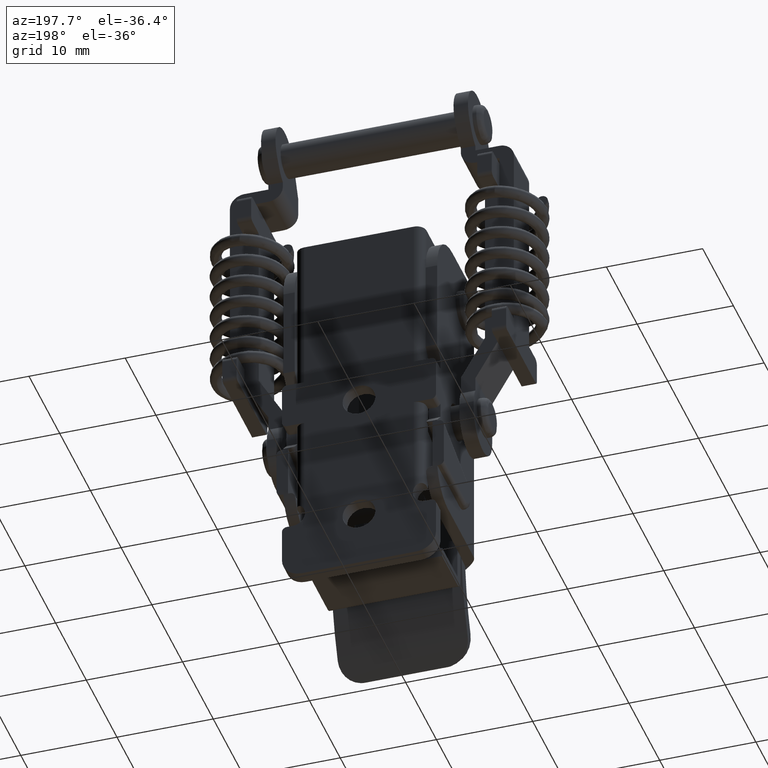
[diagram: clean part render]
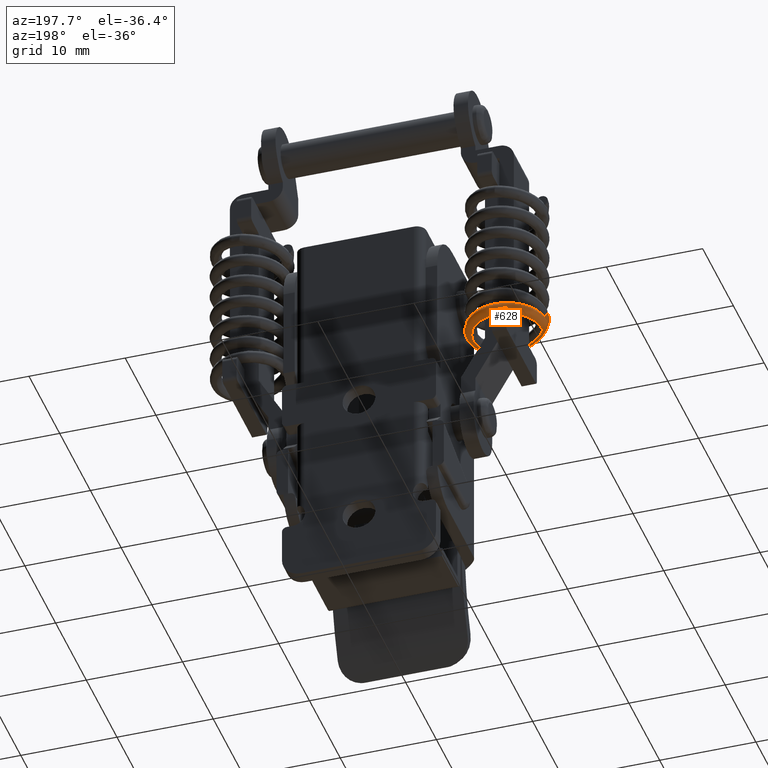
[diagram: same view with one face highlighted and labeled with its STEP entity id]
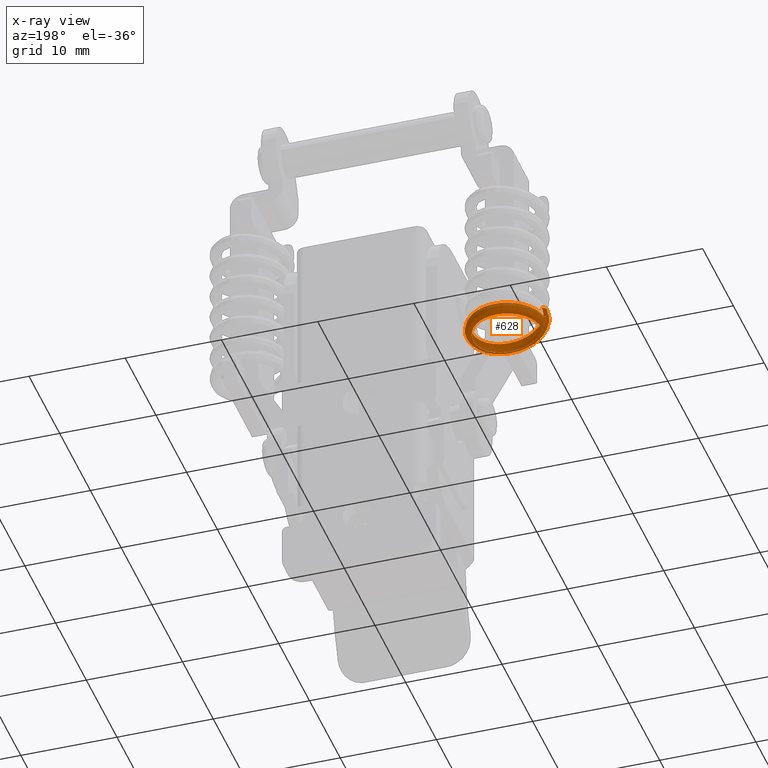
[diagram: x-ray of the same camera — body ghosted, the highlighted face saturated]
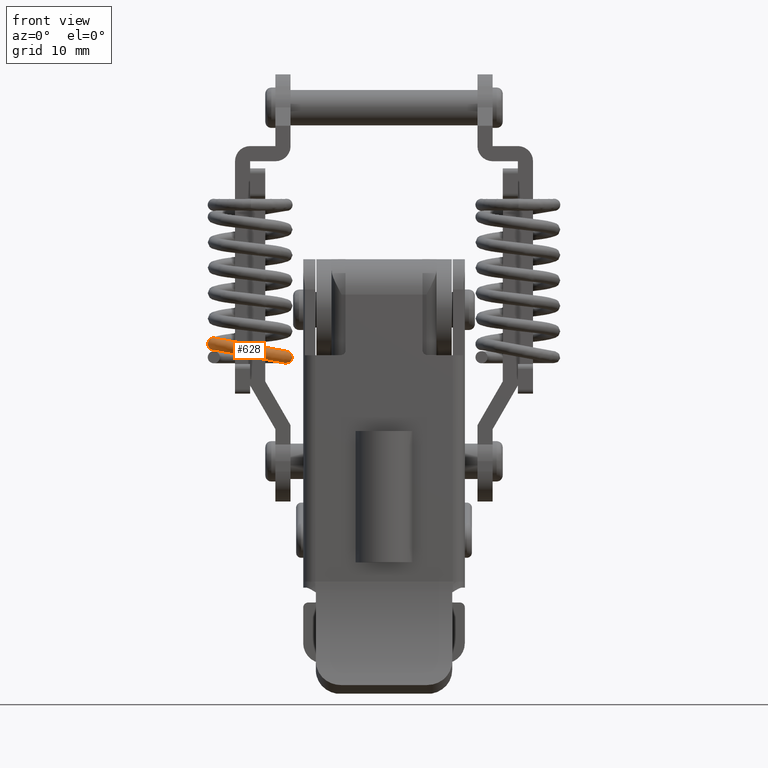
[diagram: same view with one face highlighted and labeled with its STEP entity id]
A machine part, auxiliary view. The second image highlights one B-rep face of the part: STEP entity #628.
The next image is the same camera in x-ray: the body ghosted, the highlighted face saturated — about 1% of this face is hidden behind the body in this view.
A second angle (front view) of the same face is appended — the face is thin or edge-on in the first view.
In plain terms, the highlighted face is a freeform B-spline surface patch.
Its self-contained STEP definition (entity closure, byte-faithful):
#628=ADVANCED_FACE('',(#4272),#4271,.T.);
#4271=( BOUNDED_SURFACE() B_SPLINE_SURFACE( 3,3,((#7446,#7447,#7448,#7449,#7450,#7451,#7452,#7453,#7454,#7455,#7456,#7457,#7458),(#7459,#7460,#7461,#7462,#7463,#7464,#7465,#7466,#7467,#7468,#7469,#7470,#7471),(#7472,#7473,#7474,#7475,#7476,#7477,#7478,#7479,#7480,#7481,#7482,#7483,#7484),(#7485,#7486,#7487,#7488,#7489,#7490,#7491,#7492,#7493,#7494,#7495,#7496,#7497),(#7498,#7499,#7500,#7501,#7502,#7503,#7504,#7505,#7506,#7507,#7508,#7509,#7510),(#7511,#7512,#7513,#7514,#7515,#7516,#7517,#7518,#7519,#7520,#7521,#7522,#7523)), .UNSPECIFIED.,.F.,.F.,.F.) B_SPLINE_SURFACE_WITH_KNOTS((4,2,4),(4,3,3,3,4),(0.00000000000E+00,2.50000000000E-01,5.00000000000E-01),(0.00000000000E+00,1.00000000000E+00,2.00000000000E+00,3.00000000000E+00,4.00000000000E+00), .UNSPECIFIED. ) GEOMETRIC_REPRESENTATION_ITEM() RATIONAL_B_SPLINE_SURFACE(((1.00000000000E+00,1.00000000000E+00,1.00000000000E+00,1.00000000000E+00,1.00000000000E+00,1.00000000000E+00,1.00000000000E+00,1.00000000000E+00,1.00000000000E+00,1.00000000000E+00,1.00000000000E+00,1.00000000000E+00,1.00000000000E+00),(1.00000000000E+00,1.00000000000E+00,1.00000000000E+00,1.00000000000E+00,1.00000000000E+00,1.00000000000E+00,1.00000000000E+00,1.00000000000E+00,1.00000000000E+00,1.00000000000E+00,1.00000000000E+00,1.00000000000E+00,1.00000000000E+00),(1.00000000000E+00,1.00000000000E+00,1.00000000000E+00,1.00000000000E+00,1.00000000000E+00,1.00000000000E+00,1.00000000000E+00,1.00000000000E+00,1.00000000000E+00,1.00000000000E+00,1.00000000000E+00,1.00000000000E+00,1.00000000000E+00),(1.00000000000E+00,1.00000000000E+00,1.00000000000E+00,1.00000000000E+00,1.00000000000E+00,1.00000000000E+00,1.00000000000E+00,1.00000000000E+00,1.00000000000E+00,1.00000000000E+00,1.00000000000E+00,1.00000000000E+00,1.00000000000E+00),(1.00000000000E+00,1.00000000000E+00,1.00000000000E+00,1.00000000000E+00,1.00000000000E+00,1.00000000000E+00,1.00000000000E+00,1.00000000000E+00,1.00000000000E+00,1.00000000000E+00,1.00000000000E+00,1.00000000000E+00,1.00000000000E+00),(1.00000000000E+00,1.00000000000E+00,1.00000000000E+00,1.00000000000E+00,1.00000000000E+00,1.00000000000E+00,1.00000000000E+00,1.00000000000E+00,1.00000000000E+00,1.00000000000E+00,1.00000000000E+00,1.00000000000E+00,1.00000000000E+00))) REPRESENTATION_ITEM('') SURFACE() );
#4272=FACE_OUTER_BOUND('',#7524,.T.);
#7446=CARTESIAN_POINT('',(9.65000000000E+00,-1.46913047217E+00,-2.53024080570E+01));
#7447=CARTESIAN_POINT('',(9.65000000000E+00,5.19094627217E-01,-2.53024080570E+01));
#7448=CARTESIAN_POINT('',(1.12904646163E+01,2.07778369106E+00,-2.52927002305E+01));
#7449=CARTESIAN_POINT('',(1.32500000000E+01,2.07778369107E+00,-2.52927002305E+01));
#7450=CARTESIAN_POINT('',(1.52095353837E+01,2.07778369107E+00,-2.52927002305E+01));
#7451=CARTESIAN_POINT('',(1.67438283265E+01,4.61715195831E-01,-2.52829924039E+01));
#7452=CARTESIAN_POINT('',(1.67438283265E+01,-1.46913047216E+00,-2.52829924039E+01));
#7453=CARTESIAN_POINT('',(1.67438283265E+01,-3.45735557155E+00,-2.52829924039E+01));
#7454=CARTESIAN_POINT('',(1.51038317187E+01,-5.01516429793E+00,-2.49830856197E+01));
#7455=CARTESIAN_POINT('',(1.31438283265E+01,-5.01516429793E+00,-2.46246590769E+01));
#7456=CARTESIAN_POINT('',(1.11838249342E+01,-5.01516429794E+00,-2.42662325341E+01));
#7457=CARTESIAN_POINT('',(9.65000000000E+00,-3.39805728179E+00,-2.39857414030E+01));
#7458=CARTESIAN_POINT('',(9.65000000000E+00,-1.46913047217E+00,-2.39857414030E+01));
#7459=CARTESIAN_POINT('',(9.31862915010E+00,-1.46913047217E+00,-2.53024080570E+01));
#7460=CARTESIAN_POINT('',(9.31862915010E+00,6.98180727285E-01,-2.53024080570E+01));
#7461=CARTESIAN_POINT('',(1.11142760776E+01,2.40379305641E+00,-2.53220187285E+01));
#7462=CARTESIAN_POINT('',(1.32500000000E+01,2.40379305642E+00,-2.53220187285E+01));
#7463=CARTESIAN_POINT('',(1.53857239224E+01,2.40379305642E+00,-2.53220187285E+01));
#7464=CARTESIAN_POINT('',(1.70644762073E+01,6.35006173249E-01,-2.53416294001E+01));
#7465=CARTESIAN_POINT('',(1.70644762073E+01,-1.46913047216E+00,-2.53416294001E+01));
#7466=CARTESIAN_POINT('',(1.70644762073E+01,-3.63644167162E+00,-2.53416294001E+01));
#7467=CARTESIAN_POINT('',(1.52689343568E+01,-5.34112957335E+00,-2.50435769548E+01));
#7468=CARTESIAN_POINT('',(1.31384668419E+01,-5.34112957335E+00,-2.46539775750E+01));
#7469=CARTESIAN_POINT('',(1.10079993271E+01,-5.34112957336E+00,-2.42643781952E+01));
#7470=CARTESIAN_POINT('',(9.31862915011E+00,-3.57714338186E+00,-2.39857414030E+01));
#7471=CARTESIAN_POINT('',(9.31862915010E+00,-1.46913047217E+00,-2.39857414030E+01));
#7472=CARTESIAN_POINT('',(9.05000000000E+00,-1.46913047217E+00,-2.50337789069E+01));
#7473=CARTESIAN_POINT('',(9.05000000000E+00,8.43358695929E-01,-2.50337789069E+01));
#7474=CARTESIAN_POINT('',(1.09586022232E+01,2.69184320321E+00,-2.50815032591E+01));
#7475=CARTESIAN_POINT('',(1.32500000000E+01,2.69184320322E+00,-2.50815032591E+01));
#7476=CARTESIAN_POINT('',(1.55413977767E+01,2.69184320322E+00,-2.50815032591E+01));
#7477=CARTESIAN_POINT('',(1.73719473508E+01,8.01175913256E-01,-2.51292276113E+01));
#7478=CARTESIAN_POINT('',(1.73719473508E+01,-1.46913047216E+00,-2.51292276113E+01));
#7479=CARTESIAN_POINT('',(1.73719473508E+01,-3.78161964026E+00,-2.51292276113E+01));
#7480=CARTESIAN_POINT('',(1.54629464557E+01,-5.62953811871E+00,-2.48349890246E+01));
#7481=CARTESIAN_POINT('',(1.31816551773E+01,-5.62953811871E+00,-2.44178084476E+01));
#7482=CARTESIAN_POINT('',(1.09003638989E+01,-5.62953811872E+00,-2.40006278706E+01));
#7483=CARTESIAN_POINT('',(9.05000000000E+00,-3.74887009914E+00,-2.37171122529E+01));
#7484=CARTESIAN_POINT('',(9.05000000000E+00,-1.46913047217E+00,-2.37171122529E+01));
#7485=CARTESIAN_POINT('',(9.05000000000E+00,-1.46913047217E+00,-2.43710372071E+01));
#7486=CARTESIAN_POINT('',(9.05000000000E+00,8.43358695929E-01,-2.43710372071E+01));
#7487=CARTESIAN_POINT('',(1.09269124383E+01,2.75048019937E+00,-2.44294845284E+01));
#7488=CARTESIAN_POINT('',(1.32500000000E+01,2.75048019937E+00,-2.44294845284E+01));
#7489=CARTESIAN_POINT('',(1.55730875617E+01,2.75048019938E+00,-2.44294845284E+01));
#7490=CARTESIAN_POINT('',(1.74892213431E+01,8.64555483092E-01,-2.44879318497E+01));
#7491=CARTESIAN_POINT('',(1.74892213431E+01,-1.46913047216E+00,-2.44879318497E+01));
#7492=CARTESIAN_POINT('',(1.74892213431E+01,-3.78161964026E+00,-2.44879318497E+01));
#7493=CARTESIAN_POINT('',(1.56113932850E+01,-5.68914750878E+00,-2.41993938511E+01));
#7494=CARTESIAN_POINT('',(1.32989291696E+01,-5.68914750878E+00,-2.37765126860E+01));
#7495=CARTESIAN_POINT('',(1.09864650543E+01,-5.68914750879E+00,-2.33536315208E+01));
#7496=CARTESIAN_POINT('',(9.05000000000E+00,-3.81436918141E+00,-2.30543705531E+01));
#7497=CARTESIAN_POINT('',(9.05000000000E+00,-1.46913047217E+00,-2.30543705531E+01));
#7498=CARTESIAN_POINT('',(9.31862915010E+00,-1.46913047217E+00,-2.41024080570E+01));
#7499=CARTESIAN_POINT('',(9.31862915010E+00,6.98180727285E-01,-2.41024080570E+01));
#7500=CARTESIAN_POINT('',(1.10568966462E+01,2.50996472994E+00,-2.41414343816E+01));
#7501=CARTESIAN_POINT('',(1.32500000000E+01,2.50996472995E+00,-2.41414343816E+01));
#7502=CARTESIAN_POINT('',(1.54431033538E+01,2.50996472995E+00,-2.41414343816E+01));
#7503=CARTESIAN_POINT('',(1.72768195543E+01,7.49765036055E-01,-2.41804607062E+01));
#7504=CARTESIAN_POINT('',(1.72768195543E+01,-1.46913047216E+00,-2.41804607062E+01));
#7505=CARTESIAN_POINT('',(1.72768195543E+01,-3.63644167161E+00,-2.41804607062E+01));
#7506=CARTESIAN_POINT('',(1.55377211181E+01,-5.44906192181E+00,-2.38927300889E+01));
#7507=CARTESIAN_POINT('',(1.33508101890E+01,-5.44906192181E+00,-2.34928088812E+01));
#7508=CARTESIAN_POINT('',(1.11638992599E+01,-5.44906192182E+00,-2.30928876734E+01));
#7509=CARTESIAN_POINT('',(9.31862915011E+00,-3.69573996140E+00,-2.27857414030E+01));
#7510=CARTESIAN_POINT('',(9.31862915010E+00,-1.46913047217E+00,-2.27857414030E+01));
#7511=CARTESIAN_POINT('',(9.65000000000E+00,-1.46913047217E+00,-2.41024080570E+01));
#7512=CARTESIAN_POINT('',(9.65000000000E+00,5.19094627217E-01,-2.41024080570E+01));
#7513=CARTESIAN_POINT('',(1.12330851849E+01,2.18395536460E+00,-2.41121158835E+01));
#7514=CARTESIAN_POINT('',(1.32500000000E+01,2.18395536460E+00,-2.41121158835E+01));
#7515=CARTESIAN_POINT('',(1.52669148151E+01,2.18395536461E+00,-2.41121158835E+01));
#7516=CARTESIAN_POINT('',(1.69561716735E+01,5.76474058637E-01,-2.41218237101E+01));
#7517=CARTESIAN_POINT('',(1.69561716735E+01,-1.46913047216E+00,-2.41218237101E+01));
#7518=CARTESIAN_POINT('',(1.69561716735E+01,-3.45735557155E+00,-2.41218237101E+01));
#7519=CARTESIAN_POINT('',(1.53726184801E+01,-5.12309664639E+00,-2.38322387539E+01));
#7520=CARTESIAN_POINT('',(1.33561716735E+01,-5.12309664640E+00,-2.34634903831E+01));
#7521=CARTESIAN_POINT('',(1.13397248670E+01,-5.12309664640E+00,-2.30947420123E+01));
#7522=CARTESIAN_POINT('',(9.65000000000E+00,-3.51665386134E+00,-2.27857414030E+01));
#7523=CARTESIAN_POINT('',(9.65000000000E+00,-1.46913047217E+00,-2.27857414030E+01));
#7524=EDGE_LOOP('',(#9799,#9800,#9801,#9802,#9803,#9804));
#9799=ORIENTED_EDGE('',*,*,#10835,.T.);
#9800=ORIENTED_EDGE('',*,*,#10828,.F.);
#9801=ORIENTED_EDGE('',*,*,#10839,.F.);
#9802=ORIENTED_EDGE('',*,*,#10840,.F.);
#9803=ORIENTED_EDGE('',*,*,#10837,.F.);
#9804=ORIENTED_EDGE('',*,*,#10838,.T.);
#10828=EDGE_CURVE('',#17397,#17369,#17404,.T.);
#10835=EDGE_CURVE('',#17450,#17369,#17451,.T.);
#10837=EDGE_CURVE('',#17457,#17437,#17464,.T.);
#10838=EDGE_CURVE('',#17457,#17450,#17470,.T.);
#10839=EDGE_CURVE('',#17476,#17397,#17477,.T.);
#10840=EDGE_CURVE('',#17437,#17476,#17483,.T.);
#17369=VERTEX_POINT('',#21575);
#17397=VERTEX_POINT('',#21711);
#17404=(BOUNDED_CURVE() B_SPLINE_CURVE(3,(#21716,#21717,#21718,#21719),.UNSPECIFIED.,.F.,.F.) B_SPLINE_CURVE_WITH_KNOTS((4,4),(-5.01504590023E-01,0.00000000000E+00),.UNSPECIFIED.) CURVE() GEOMETRIC_REPRESENTATION_ITEM() RATIONAL_B_SPLINE_CURVE((1.00000000000E+00,1.00000000000E+00,1.00000000000E+00,1.00000000000E+00)) REPRESENTATION_ITEM('') );
#17437=VERTEX_POINT('',#21741);
#17450=VERTEX_POINT('',#21750);
#17451=(BOUNDED_CURVE() B_SPLINE_CURVE(3,(#21751,#21752,#21753,#21754,#21755,#21756,#21757,#21758,#21759,#21760,#21761,#21762,#21763),.UNSPECIFIED.,.F.,.F.) B_SPLINE_CURVE_WITH_KNOTS((4,3,3,3,4),(0.00000000000E+00,1.00000000000E+00,2.00000000000E+00,3.00000000000E+00,4.00000000000E+00),.UNSPECIFIED.) CURVE() GEOMETRIC_REPRESENTATION_ITEM() RATIONAL_B_SPLINE_CURVE((1.00000000000E+00,1.00000000000E+00,1.00000000000E+00,1.00000000000E+00,1.00000000000E+00,1.00000000000E+00,1.00000000000E+00,1.00000000000E+00,1.00000000000E+00,1.00000000000E+00,1.00000000000E+00,1.00000000000E+00,1.00000000000E+00)) REPRESENTATION_ITEM('') );
#17457=VERTEX_POINT('',#21764);
#17464=(BOUNDED_CURVE() B_SPLINE_CURVE(3,(#21771,#21772,#21773,#21774,#21775,#21776,#21777,#21778,#21779,#21780,#21781,#21782,#21783),.UNSPECIFIED.,.F.,.F.) B_SPLINE_CURVE_WITH_KNOTS((4,3,3,3,4),(0.00000000000E+00,1.00000000000E+00,2.00000000000E+00,3.00000000000E+00,3.98931116008E+00),.UNSPECIFIED.) CURVE() GEOMETRIC_REPRESENTATION_ITEM() RATIONAL_B_SPLINE_CURVE((1.00000000000E+00,1.00000000000E+00,1.00000000000E+00,1.00000000000E+00,1.00000000000E+00,1.00000000000E+00,1.00000000000E+00,1.00000000000E+00,1.00000000000E+00,1.00000000000E+00,1.00000000000E+00,1.00000000000E+00,1.00000000000E+00)) REPRESENTATION_ITEM('') );
#17470=(BOUNDED_CURVE() B_SPLINE_CURVE(3,(#21784,#21785,#21786,#21787,#21788,#21789),.UNSPECIFIED.,.F.,.F.) B_SPLINE_CURVE_WITH_KNOTS((4,2,4),(0.00000000000E+00,2.50000000000E-01,5.00000000000E-01),.UNSPECIFIED.) CURVE() GEOMETRIC_REPRESENTATION_ITEM() RATIONAL_B_SPLINE_CURVE((1.00000000000E+00,1.00000000000E+00,1.00000000000E+00,1.00000000000E+00,1.00000000000E+00,1.00000000000E+00)) REPRESENTATION_ITEM('') );
#17476=VERTEX_POINT('',#21790);
#17477=(BOUNDED_CURVE() B_SPLINE_CURVE(3,(#21791,#21792,#21793,#21794),.UNSPECIFIED.,.F.,.F.) B_SPLINE_CURVE_WITH_KNOTS((4,4),(9.60771460651E-04,1.00000000000E+00),.UNSPECIFIED.) CURVE() GEOMETRIC_REPRESENTATION_ITEM() RATIONAL_B_SPLINE_CURVE((1.00000000000E+00,1.00000000000E+00,1.00000000000E+00,1.00000000000E+00)) REPRESENTATION_ITEM('') );
#17483=(BOUNDED_CURVE() B_SPLINE_CURVE(3,(#21795,#21796,#21797,#21798),.UNSPECIFIED.,.F.,.F.) B_SPLINE_CURVE_WITH_KNOTS((4,4),(-9.99998527732E-01,-4.98700562750E-01),.UNSPECIFIED.) CURVE() GEOMETRIC_REPRESENTATION_ITEM() RATIONAL_B_SPLINE_CURVE((1.00000000000E+00,1.00000000000E+00,1.00000000000E+00,1.00000000000E+00)) REPRESENTATION_ITEM('') );
#21575=CARTESIAN_POINT('',(9.65000000032E+00,-1.46910775830E+00,-2.27859637235E+01));
#21711=CARTESIAN_POINT('',(9.05000888182E+00,-1.46909525006E+00,-2.33893240210E+01));
#21716=CARTESIAN_POINT('',(9.05000729242E+00,-1.46906002795E+00,-2.33893240288E+01));
#21717=CARTESIAN_POINT('',(9.03946297412E+00,-1.46905985110E+00,-2.30673577395E+01));
#21718=CARTESIAN_POINT('',(9.32800722184E+00,-1.46906469070E+00,-2.27774093828E+01));
#21719=CARTESIAN_POINT('',(9.65000000051E+00,-1.46907009131E+00,-2.27863342767E+01));
#21741=CARTESIAN_POINT('',(9.65051930380E+00,-1.53044930526E+00,-2.39885263903E+01));
#21750=CARTESIAN_POINT('',(9.65000000000E+00,-1.46913047217E+00,-2.41024080570E+01));
#21751=CARTESIAN_POINT('',(9.65000000000E+00,-1.46913047217E+00,-2.41024080570E+01));
#21752=CARTESIAN_POINT('',(9.65000000000E+00,5.19094627217E-01,-2.41024080570E+01));
#21753=CARTESIAN_POINT('',(1.12330851849E+01,2.18395536460E+00,-2.41121158835E+01));
#21754=CARTESIAN_POINT('',(1.32500000000E+01,2.18395536460E+00,-2.41121158835E+01));
#21755=CARTESIAN_POINT('',(1.52669148151E+01,2.18395536461E+00,-2.41121158835E+01));
#21756=CARTESIAN_POINT('',(1.69561716735E+01,5.76474058637E-01,-2.41218237101E+01));
#21757=CARTESIAN_POINT('',(1.69561716735E+01,-1.46913047216E+00,-2.41218237101E+01));
#21758=CARTESIAN_POINT('',(1.69561716735E+01,-3.45735557155E+00,-2.41218237101E+01));
#21759=CARTESIAN_POINT('',(1.53726184801E+01,-5.12309664639E+00,-2.38322387539E+01));
#21760=CARTESIAN_POINT('',(1.33561716735E+01,-5.12309664640E+00,-2.34634903831E+01));
#21761=CARTESIAN_POINT('',(1.13397248670E+01,-5.12309664640E+00,-2.30947420123E+01));
#21762=CARTESIAN_POINT('',(9.65000000000E+00,-3.51665386134E+00,-2.27857414030E+01));
#21763=CARTESIAN_POINT('',(9.65000000000E+00,-1.46913047217E+00,-2.27857414030E+01));
#21764=CARTESIAN_POINT('',(9.65000000000E+00,-1.46913047217E+00,-2.53024080570E+01));
#21771=CARTESIAN_POINT('',(9.65000000000E+00,-1.46913047217E+00,-2.53024080570E+01));
#21772=CARTESIAN_POINT('',(9.65000000000E+00,5.19094627217E-01,-2.53024080570E+01));
#21773=CARTESIAN_POINT('',(1.12904646163E+01,2.07778369106E+00,-2.52927002305E+01));
#21774=CARTESIAN_POINT('',(1.32500000000E+01,2.07778369107E+00,-2.52927002305E+01));
#21775=CARTESIAN_POINT('',(1.52095353837E+01,2.07778369107E+00,-2.52927002305E+01));
#21776=CARTESIAN_POINT('',(1.67438283265E+01,4.61715195831E-01,-2.52829924039E+01));
#21777=CARTESIAN_POINT('',(1.67438283265E+01,-1.46913047216E+00,-2.52829924039E+01));
#21778=CARTESIAN_POINT('',(1.67438283265E+01,-3.45735557155E+00,-2.52829924039E+01));
#21779=CARTESIAN_POINT('',(1.51038317187E+01,-5.01516429793E+00,-2.49830856197E+01));
#21780=CARTESIAN_POINT('',(1.31438283265E+01,-5.01516429793E+00,-2.46246590769E+01));
#21781=CARTESIAN_POINT('',(1.12047750967E+01,-5.01516429794E+00,-2.42700636980E+01));
#21782=CARTESIAN_POINT('',(9.68283830982E+00,-3.43244252127E+00,-2.39917465568E+01));
#21783=CARTESIAN_POINT('',(9.65052437180E+00,-1.53087597034E+00,-2.39858372951E+01));
#21784=CARTESIAN_POINT('',(9.65000000000E+00,-1.46913047217E+00,-2.53024080570E+01));
#21785=CARTESIAN_POINT('',(9.31862915010E+00,-1.46913047217E+00,-2.53024080570E+01));
#21786=CARTESIAN_POINT('',(9.05000000000E+00,-1.46913047217E+00,-2.50337789069E+01));
#21787=CARTESIAN_POINT('',(9.05000000000E+00,-1.46913047217E+00,-2.43710372071E+01));
#21788=CARTESIAN_POINT('',(9.31862915010E+00,-1.46913047217E+00,-2.41024080570E+01));
#21789=CARTESIAN_POINT('',(9.65000000000E+00,-1.46913047217E+00,-2.41024080570E+01));
#21790=CARTESIAN_POINT('',(9.05060205869E+00,-1.53993907519E+00,-2.33893155197E+01));
#21791=CARTESIAN_POINT('',(9.05060235608E+00,-1.53993907044E+00,-2.33893147996E+01));
#21792=CARTESIAN_POINT('',(9.05019489385E+00,-1.51628639646E+00,-2.33893027251E+01));
#21793=CARTESIAN_POINT('',(9.04999847178E+00,-1.49268178804E+00,-2.33893080021E+01));
#21794=CARTESIAN_POINT('',(9.05001047007E+00,-1.46913047217E+00,-2.33893238155E+01));
#21795=CARTESIAN_POINT('',(9.65050971577E+00,-1.52988217618E+00,-2.39918996388E+01));
#21796=CARTESIAN_POINT('',(9.32871225269E+00,-1.53531342968E+00,-2.40008108258E+01));
#21797=CARTESIAN_POINT('',(9.04029410063E+00,-1.54018131175E+00,-2.37111382771E+01));
#21798=CARTESIAN_POINT('',(9.05060352167E+00,-1.54000731075E+00,-2.33893173400E+01));